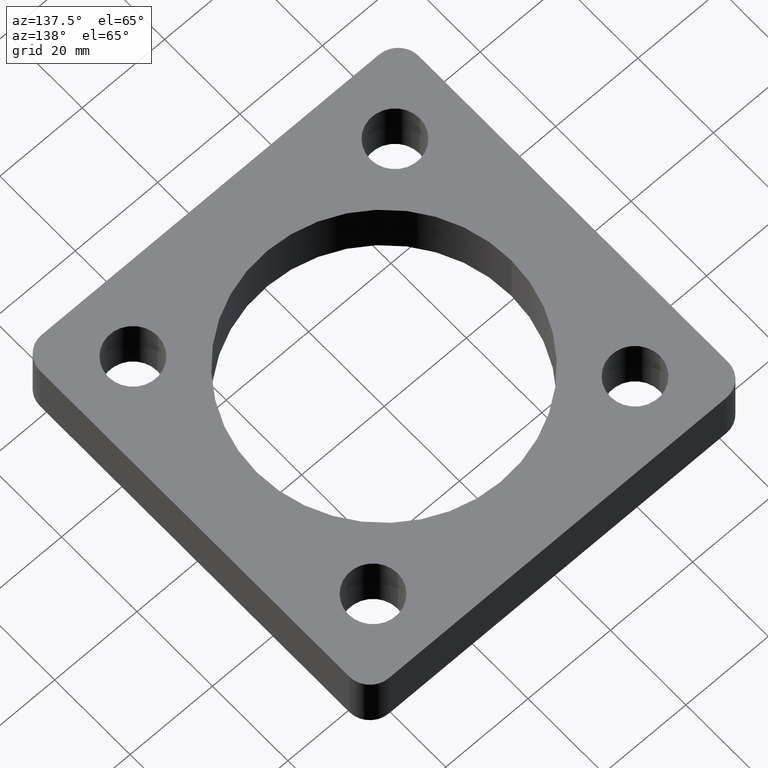
[diagram: clean part render]
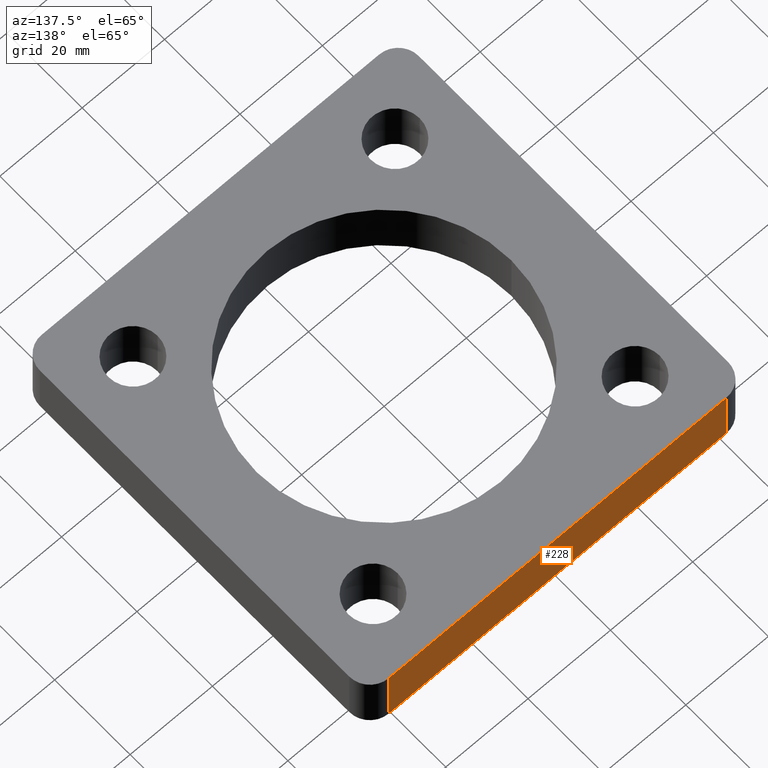
[diagram: same view with one face highlighted and labeled with its STEP entity id]
A machine part, auxiliary view. The second image highlights one B-rep face of the part: STEP entity #228.
In plain terms, the highlighted planar face has unit normal (0, 1, 0).
Its self-contained STEP definition (entity closure, byte-faithful):
#19 = EDGE_LOOP ( 'NONE', ( #674, #339, #304, #93 ) ) ;
#48 = LINE ( 'NONE', #507, #461 ) ;
#79 = VECTOR ( 'NONE', #683, 1000.000000000000000 ) ;
#93 = ORIENTED_EDGE ( 'NONE', *, *, #622, .T. ) ;
#110 = VERTEX_POINT ( 'NONE', #723 ) ;
#120 = EDGE_CURVE ( 'NONE', #126, #466, #720, .T. ) ;
#126 = VERTEX_POINT ( 'NONE', #672 ) ;
#137 = CARTESIAN_POINT ( 'NONE',  ( 40.99999999999998579, 45.99999999999999289, -16.00000000000000000 ) ) ;
#154 = DIRECTION ( 'NONE',  ( 0.000000000000000000, -0.000000000000000000, 1.000000000000000000 ) ) ;
#158 = VECTOR ( 'NONE', #524, 1000.000000000000000 ) ;
#208 = DIRECTION ( 'NONE',  ( 0.000000000000000000, 1.000000000000000000, 0.000000000000000000 ) ) ;
#228 = ADVANCED_FACE ( 'NONE', ( #264 ), #492, .T. ) ;
#264 = FACE_OUTER_BOUND ( 'NONE', #19, .T. ) ;
#275 = DIRECTION ( 'NONE',  ( -1.000000000000000000, -0.000000000000000000, -0.000000000000000000 ) ) ;
#304 = ORIENTED_EDGE ( 'NONE', *, *, #382, .T. ) ;
#322 = DIRECTION ( 'NONE',  ( -1.000000000000000000, 0.000000000000000000, 0.000000000000000000 ) ) ;
#339 = ORIENTED_EDGE ( 'NONE', *, *, #120, .F. ) ;
#355 = CARTESIAN_POINT ( 'NONE',  ( -41.00000000000000711, 45.99999999999999289, -1.000000000000000000 ) ) ;
#374 = VECTOR ( 'NONE', #322, 1000.000000000000000 ) ;
#382 = EDGE_CURVE ( 'NONE', #126, #451, #738, .T. ) ;
#446 = CARTESIAN_POINT ( 'NONE',  ( 40.99999999999998579, 45.99999999999999289, -16.00000000000000000 ) ) ;
#451 = VERTEX_POINT ( 'NONE', #137 ) ;
#461 = VECTOR ( 'NONE', #275, 1000.000000000000000 ) ;
#466 = VERTEX_POINT ( 'NONE', #355 ) ;
#474 = CARTESIAN_POINT ( 'NONE',  ( -41.00000000000000711, 45.99999999999999289, -16.00000000000000000 ) ) ;
#492 = PLANE ( 'NONE',  #631 ) ;
#507 = CARTESIAN_POINT ( 'NONE',  ( -46.00000000000000711, 45.99999999999999289, -16.00000000000000000 ) ) ;
#515 = EDGE_CURVE ( 'NONE', #110, #466, #638, .T. ) ;
#524 = DIRECTION ( 'NONE',  ( 0.000000000000000000, -0.000000000000000000, 1.000000000000000000 ) ) ;
#540 = CARTESIAN_POINT ( 'NONE',  ( 40.99999999999998579, 45.99999999999999289, -1.000000000000000000 ) ) ;
#622 = EDGE_CURVE ( 'NONE', #451, #110, #48, .T. ) ;
#631 = AXIS2_PLACEMENT_3D ( 'NONE', #732, #208, #154 ) ;
#638 = LINE ( 'NONE', #474, #158 ) ;
#672 = CARTESIAN_POINT ( 'NONE',  ( 40.99999999999998579, 45.99999999999999289, -1.000000000000000000 ) ) ;
#674 = ORIENTED_EDGE ( 'NONE', *, *, #515, .T. ) ;
#683 = DIRECTION ( 'NONE',  ( -0.000000000000000000, 0.000000000000000000, -1.000000000000000000 ) ) ;
#720 = LINE ( 'NONE', #540, #374 ) ;
#723 = CARTESIAN_POINT ( 'NONE',  ( -41.00000000000000711, 45.99999999999999289, -16.00000000000000000 ) ) ;
#732 = CARTESIAN_POINT ( 'NONE',  ( -46.00000000000000711, 45.99999999999999289, -16.00000000000000000 ) ) ;
#738 = LINE ( 'NONE', #446, #79 ) ;